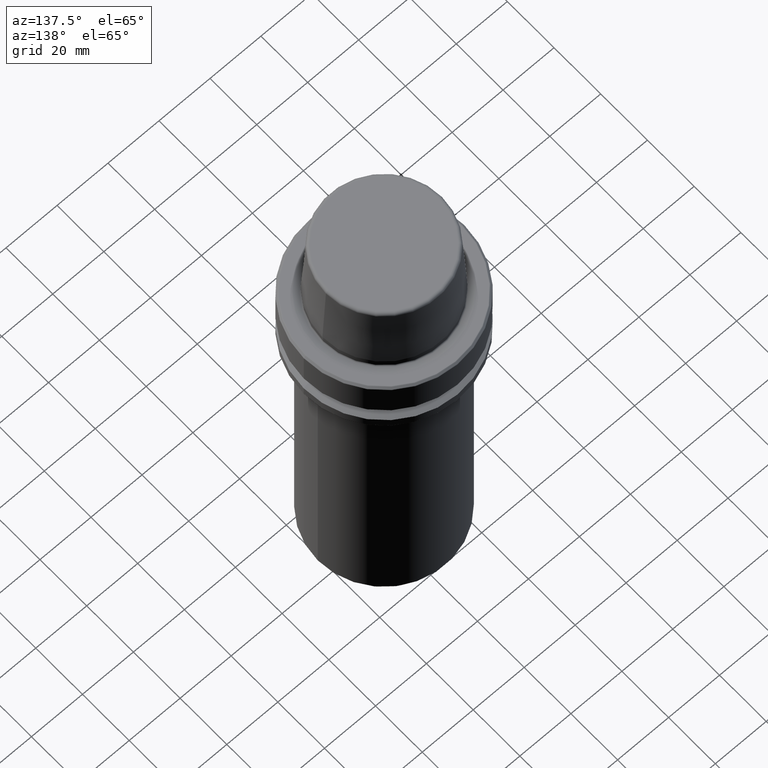
[diagram: clean part render]
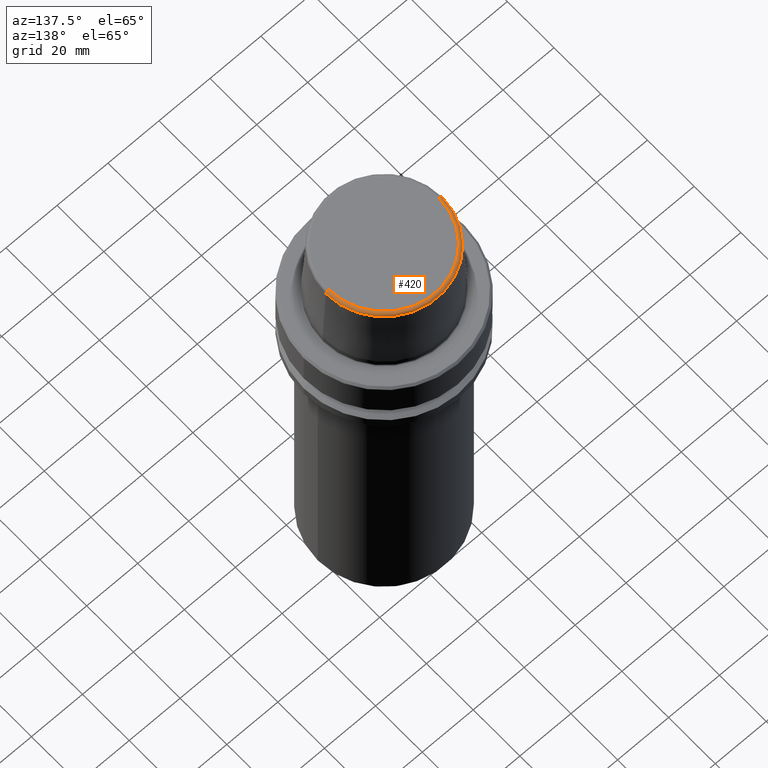
[diagram: same view with one face highlighted and labeled with its STEP entity id]
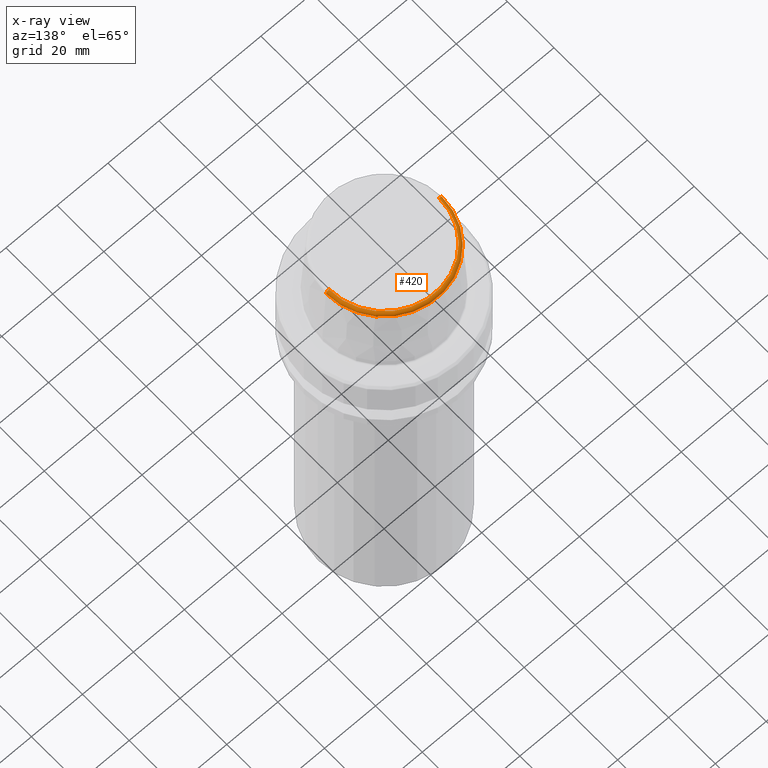
[diagram: x-ray of the same camera — body ghosted, the highlighted face saturated]
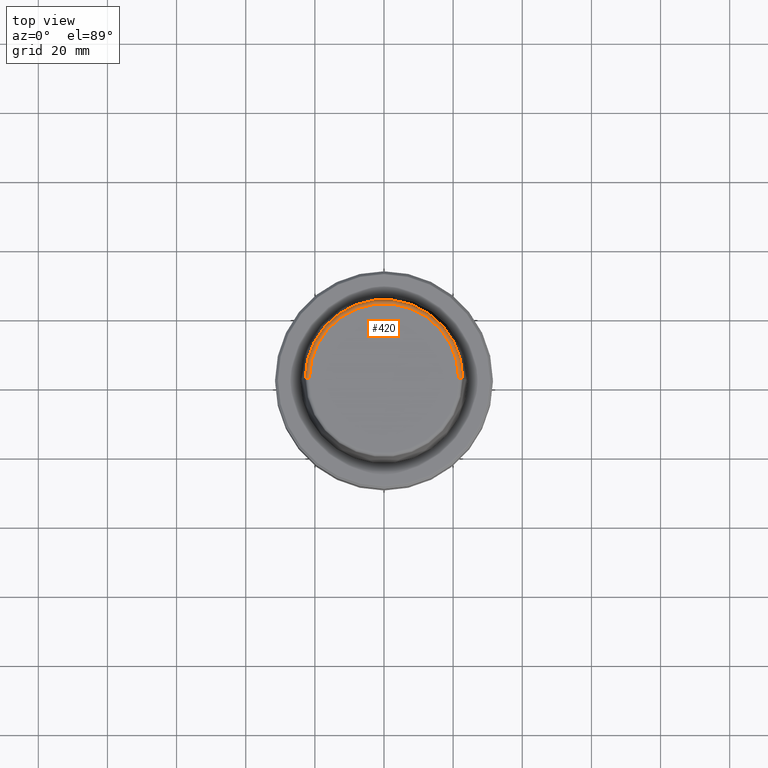
[diagram: same view with one face highlighted and labeled with its STEP entity id]
A machine part, auxiliary view. The second image highlights one B-rep face of the part: STEP entity #420.
The next image is the same camera in x-ray: the body ghosted, the highlighted face saturated — about 0% of this face is hidden behind the body in this view.
A second angle (top view) of the same face is appended — the face is thin or edge-on in the first view.
In plain terms, the highlighted toroidal blend (fillet) surface has major radius 21.5811 mm and minor (blend) radius 1.2 mm.
Its self-contained STEP definition (entity closure, byte-faithful):
#35 = CARTESIAN_POINT ( 'NONE',  ( 21.58108272732117100, 0.0000000000000000000, 31.89999999999999900 ) ) ;
#39 = CIRCLE ( 'NONE', #472, 22.77957961851797100 ) ;
#59 = CARTESIAN_POINT ( 'NONE',  ( 22.77957961851797100, 2.874852597157249900E-015, 30.76004333261571900 ) ) ;
#75 = AXIS2_PLACEMENT_3D ( 'NONE', #324, #907, #229 ) ;
#81 = EDGE_CURVE ( 'NONE', #1237, #1124, #39, .T. ) ;
#118 = CIRCLE ( 'NONE', #668, 21.58108272732117100 ) ;
#119 = DIRECTION ( 'NONE',  ( -0.0000000000000000000, -0.0000000000000000000, 1.000000000000000000 ) ) ;
#178 = CARTESIAN_POINT ( 'NONE',  ( -22.77957961851797100, 0.0000000000000000000, 30.76004333261571900 ) ) ;
#223 = DIRECTION ( 'NONE',  ( 1.000000000000000000, 0.0000000000000000000, 0.0000000000000000000 ) ) ;
#229 = DIRECTION ( 'NONE',  ( 0.0000000000000000000, 0.0000000000000000000, -1.000000000000000000 ) ) ;
#246 = AXIS2_PLACEMENT_3D ( 'NONE', #1155, #1185, #1134 ) ;
#310 = ORIENTED_EDGE ( 'NONE', *, *, #81, .T. ) ;
#324 = CARTESIAN_POINT ( 'NONE',  ( 21.58108272732117100, 0.0000000000000000000, 30.69999999999999200 ) ) ;
#348 = CARTESIAN_POINT ( 'NONE',  ( 0.0000000000000000000, 0.0000000000000000000, 30.76004333261571900 ) ) ;
#367 = DIRECTION ( 'NONE',  ( -1.000000000000000000, 1.224646799147353200E-016, 0.0000000000000000000 ) ) ;
#393 = EDGE_CURVE ( 'NONE', #533, #968, #118, .T. ) ;
#420 = ADVANCED_FACE ( 'NONE', ( #740 ), #1001, .T. ) ;
#424 = ORIENTED_EDGE ( 'NONE', *, *, #1035, .T. ) ;
#443 = CIRCLE ( 'NONE', #75, 1.200000000000003100 ) ;
#469 = CARTESIAN_POINT ( 'NONE',  ( -21.58108272732117100, 2.642920388414810300E-015, 30.69999999999999200 ) ) ;
#472 = AXIS2_PLACEMENT_3D ( 'NONE', #348, #119, #614 ) ;
#499 = AXIS2_PLACEMENT_3D ( 'NONE', #469, #1043, #367 ) ;
#533 = VERTEX_POINT ( 'NONE', #35 ) ;
#614 = DIRECTION ( 'NONE',  ( 1.000000000000000000, 0.0000000000000000000, 0.0000000000000000000 ) ) ;
#668 = AXIS2_PLACEMENT_3D ( 'NONE', #895, #1220, #223 ) ;
#720 = EDGE_CURVE ( 'NONE', #1237, #533, #443, .T. ) ;
#740 = FACE_OUTER_BOUND ( 'NONE', #807, .T. ) ;
#807 = EDGE_LOOP ( 'NONE', ( #310, #424, #998, #1229 ) ) ;
#866 = CIRCLE ( 'NONE', #499, 1.200000000000003100 ) ;
#895 = CARTESIAN_POINT ( 'NONE',  ( 0.0000000000000000000, 0.0000000000000000000, 31.89999999999999900 ) ) ;
#907 = DIRECTION ( 'NONE',  ( 0.0000000000000000000, -1.000000000000000000, 0.0000000000000000000 ) ) ;
#968 = VERTEX_POINT ( 'NONE', #1060 ) ;
#998 = ORIENTED_EDGE ( 'NONE', *, *, #393, .F. ) ;
#1001 = TOROIDAL_SURFACE ( 'NONE', #246, 21.58108272732117100, 1.200000000000003100 ) ;
#1035 = EDGE_CURVE ( 'NONE', #1124, #968, #866, .T. ) ;
#1043 = DIRECTION ( 'NONE',  ( 1.224646799147353200E-016, 1.000000000000000000, 0.0000000000000000000 ) ) ;
#1060 = CARTESIAN_POINT ( 'NONE',  ( -21.58108272732117100, 2.716307157494421400E-015, 31.89999999999999900 ) ) ;
#1124 = VERTEX_POINT ( 'NONE', #178 ) ;
#1134 = DIRECTION ( 'NONE',  ( 1.000000000000000000, 0.0000000000000000000, 0.0000000000000000000 ) ) ;
#1155 = CARTESIAN_POINT ( 'NONE',  ( 0.0000000000000000000, 0.0000000000000000000, 30.69999999999999200 ) ) ;
#1185 = DIRECTION ( 'NONE',  ( -0.0000000000000000000, -0.0000000000000000000, 1.000000000000000000 ) ) ;
#1220 = DIRECTION ( 'NONE',  ( -0.0000000000000000000, -0.0000000000000000000, 1.000000000000000000 ) ) ;
#1229 = ORIENTED_EDGE ( 'NONE', *, *, #720, .F. ) ;
#1237 = VERTEX_POINT ( 'NONE', #59 ) ;